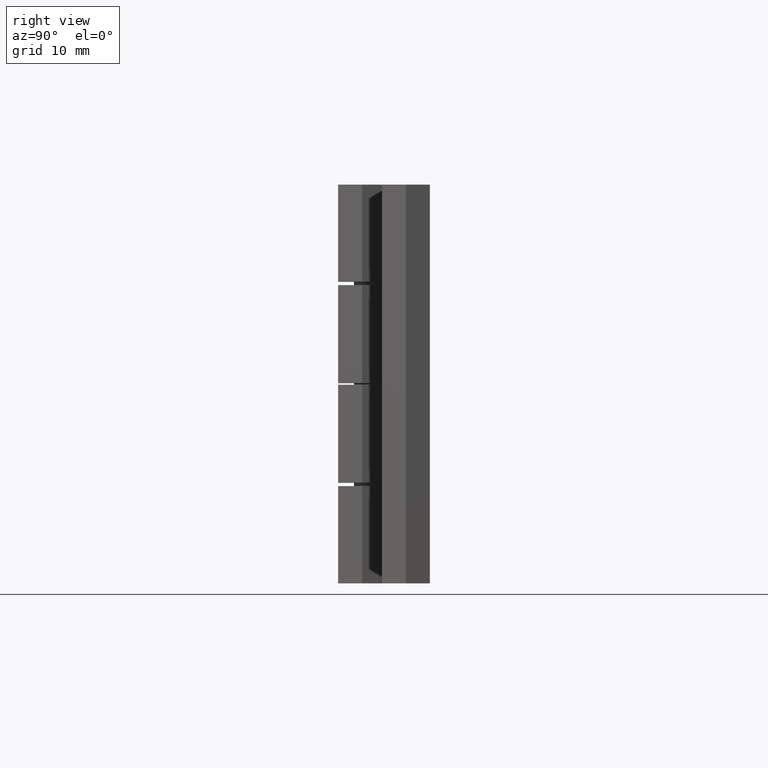
[diagram: clean part render]
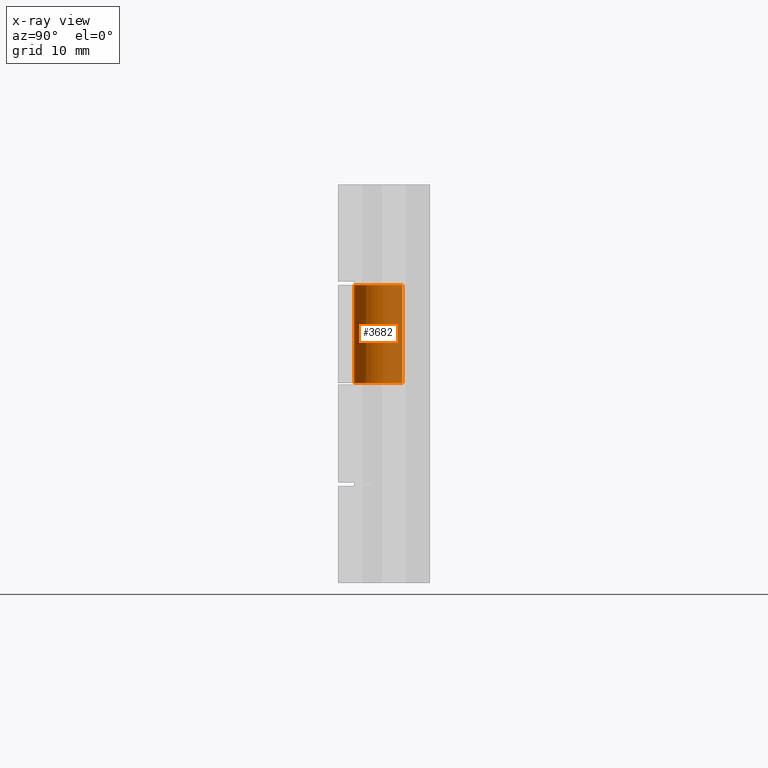
[diagram: x-ray — body ghosted, one internal face saturated and labeled with its STEP entity id]
A machine part, right view, then the same camera in x-ray: the body is ghosted and one INTERNAL B-rep face — a face not visible from any outside direction — is saturated and labeled: STEP entity #3682.
In plain terms, the highlighted face is a freeform B-spline surface patch.
Its self-contained STEP definition (entity closure, byte-faithful):
#3580=CARTESIAN_POINT('',(0.360005762731314,-3.028679199263739,37.707501791010188));
#3581=CARTESIAN_POINT('',(0.273326265256977,-3.038982371462178,37.707501791010181));
#3582=CARTESIAN_POINT('',(0.186199384354154,-3.044311279783734,37.707501791010181));
#3583=CARTESIAN_POINT('',(-2.858111895429574,-3.230509334208981,37.707501791010188));
#3584=CARTESIAN_POINT('',(-3.044309949854820,-0.186198054425254,37.707501791010181));
#3585=CARTESIAN_POINT('',(-3.230508004280067,2.858113225358472,37.707501791010188));
#3586=CARTESIAN_POINT('',(-0.186196724496341,3.044311279783720,37.707501791010181));
#3587=CARTESIAN_POINT('',(0.360005762731314,-3.028679199263739,24.784813677215297));
#3588=CARTESIAN_POINT('',(0.273326265256977,-3.038982371462178,24.784813677215290));
#3589=CARTESIAN_POINT('',(0.186199384354154,-3.044311279783734,24.784813677215290));
#3590=CARTESIAN_POINT('',(-2.858111895429574,-3.230509334208981,24.784813677215297));
#3591=CARTESIAN_POINT('',(-3.044309949854820,-0.186198054425254,24.784813677215290));
#3592=CARTESIAN_POINT('',(-3.230508004280067,2.858113225358472,24.784813677215297));
#3593=CARTESIAN_POINT('',(-0.186196724496341,3.044311279783720,24.784813677215290));
#3601=(BOUNDED_SURFACE()B_SPLINE_SURFACE(2,1,((#3580,#3587),(#3581,#3588),(#3582,#3589),(#3583,#3590),(#3584,#3591),(#3585,#3592),(#3586,#3593)),.UNSPECIFIED.,.F.,.F.,.U.)B_SPLINE_SURFACE_WITH_KNOTS((3,2,2,3),(2,2),(0.0,0.202136228039027,5.255541929014687,10.308947629990350),(0.0,12.922688113794891),.UNSPECIFIED.)GEOMETRIC_REPRESENTATION_ITEM()RATIONAL_B_SPLINE_SURFACE(((0.977505800795127,0.977505800795127),(0.988284271247462,0.988284271247462),(1.0,1.0),(0.707106781186548,0.707106781186548),(1.0,1.0),(0.707106781186548,0.707106781186548),(1.0,1.0)))REPRESENTATION_ITEM('')SURFACE());
#3602=CARTESIAN_POINT('',(0.360005762893354,-3.028679199244478,37.400001776404707));
#3603=VERTEX_POINT('',#3602);
#3604=CARTESIAN_POINT('',(-3.049998814938333,-7.105427E-015,37.400001776404700));
#3605=VERTEX_POINT('',#3604);
#3606=CARTESIAN_POINT('',(0.360005762893354,-3.028679199244478,37.400001776404707));
#3607=CARTESIAN_POINT('',(0.180634903610620,-3.050000144867247,37.400001776404707));
#3608=CARTESIAN_POINT('',(0.000001329928907,-3.050000144867247,37.400001776404700));
#3609=CARTESIAN_POINT('',(-3.049998814938332,-3.050000144867247,37.400001776404700));
#3610=CARTESIAN_POINT('',(-3.049998814938333,-7.105427E-015,37.400001776404700));
#3618=(BOUNDED_CURVE()B_SPLINE_CURVE(2,(#3606,#3607,#3608,#3609,#3610),.UNSPECIFIED.,.F.,.U.)B_SPLINE_CURVE_WITH_KNOTS((3,2,3),(0.229562473497560,0.250000000000000,0.500000000000000),.UNSPECIFIED.)CURVE()GEOMETRIC_REPRESENTATION_ITEM()RATIONAL_B_SPLINE_CURVE((0.956026754152441,0.976055948312461,1.0,0.707106781186548,1.0))REPRESENTATION_ITEM(''));
#3619=EDGE_CURVE('',#3603,#3605,#3618,.T.);
#3620=ORIENTED_EDGE('',*,*,#3619,.F.);
#3621=CARTESIAN_POINT('',(0.360005762893354,-3.028679199244478,25.100001192185900));
#3622=VERTEX_POINT('',#3621);
#3623=CARTESIAN_POINT('',(0.360005762893354,-3.028679199244478,37.400001776404707));
#3624=CARTESIAN_POINT('',(0.360005762893354,-3.028679199244478,25.100001192185900));
#3625=QUASI_UNIFORM_CURVE('',1,(#3623,#3624),.UNSPECIFIED.,.F.,.U.);
#3626=EDGE_CURVE('',#3603,#3622,#3625,.T.);
#3627=ORIENTED_EDGE('',*,*,#3626,.T.);
#3628=CARTESIAN_POINT('',(-3.049998814938333,-7.105427E-015,25.100001192185900));
#3629=VERTEX_POINT('',#3628);
#3630=CARTESIAN_POINT('',(0.360005762893354,-3.028679199244479,25.100001192185903));
#3631=CARTESIAN_POINT('',(0.180634903610620,-3.050000144867247,25.100001192185907));
#3632=CARTESIAN_POINT('',(0.000001329928907,-3.050000144867247,25.100001192185900));
#3633=CARTESIAN_POINT('',(-3.049998814938332,-3.050000144867247,25.100001192185903));
#3634=CARTESIAN_POINT('',(-3.049998814938333,-7.105427E-015,25.100001192185900));
#3642=(BOUNDED_CURVE()B_SPLINE_CURVE(2,(#3630,#3631,#3632,#3633,#3634),.UNSPECIFIED.,.F.,.U.)B_SPLINE_CURVE_WITH_KNOTS((3,2,3),(0.229562473497560,0.250000000000000,0.500000000000000),.UNSPECIFIED.)CURVE()GEOMETRIC_REPRESENTATION_ITEM()RATIONAL_B_SPLINE_CURVE((0.956026754152440,0.976055948312461,1.0,0.707106781186548,1.0))REPRESENTATION_ITEM(''));
#3643=EDGE_CURVE('',#3622,#3629,#3642,.T.);
#3644=ORIENTED_EDGE('',*,*,#3643,.T.);
#3645=CARTESIAN_POINT('',(-0.186196724671652,3.044311279772998,25.100001192185900));
#3646=VERTEX_POINT('',#3645);
#3647=CARTESIAN_POINT('',(-3.049998814938333,-7.105427E-015,25.100001192185900));
#3648=CARTESIAN_POINT('',(-3.049998814938333,2.869153640008800,25.100001192185903));
#3649=CARTESIAN_POINT('',(-0.186196724671652,3.044311279772998,25.100001192185903));
#3657=(BOUNDED_CURVE()B_SPLINE_CURVE(2,(#3647,#3648,#3649),.UNSPECIFIED.,.F.,.U.)B_SPLINE_CURVE_WITH_KNOTS((3,3),(0.500000000000000,0.739332962222096),.UNSPECIFIED.)CURVE()GEOMETRIC_REPRESENTATION_ITEM()RATIONAL_B_SPLINE_CURVE((1.0,0.719603993306447,0.976072041630612))REPRESENTATION_ITEM(''));
#3658=EDGE_CURVE('',#3629,#3646,#3657,.T.);
#3659=ORIENTED_EDGE('',*,*,#3658,.T.);
#3660=CARTESIAN_POINT('',(-0.186196724671652,3.044311279772998,37.400001776404700));
#3661=VERTEX_POINT('',#3660);
#3662=CARTESIAN_POINT('',(-0.186196724671652,3.044311279772998,37.400001776404700));
#3663=CARTESIAN_POINT('',(-0.186196724671652,3.044311279772998,25.100001192185900));
#3664=QUASI_UNIFORM_CURVE('',1,(#3662,#3663),.UNSPECIFIED.,.F.,.U.);
#3665=EDGE_CURVE('',#3661,#3646,#3664,.T.);
#3666=ORIENTED_EDGE('',*,*,#3665,.F.);
#3667=CARTESIAN_POINT('',(-3.049998814938333,-7.105427E-015,37.400001776404700));
#3668=CARTESIAN_POINT('',(-3.049998814938333,2.869153640008800,37.400001776404700));
#3669=CARTESIAN_POINT('',(-0.186196724671652,3.044311279772998,37.400001776404707));
#3677=(BOUNDED_CURVE()B_SPLINE_CURVE(2,(#3667,#3668,#3669),.UNSPECIFIED.,.F.,.U.)B_SPLINE_CURVE_WITH_KNOTS((3,3),(0.500000000000000,0.739332962222096),.UNSPECIFIED.)CURVE()GEOMETRIC_REPRESENTATION_ITEM()RATIONAL_B_SPLINE_CURVE((1.0,0.719603993306447,0.976072041630612))REPRESENTATION_ITEM(''));
#3678=EDGE_CURVE('',#3605,#3661,#3677,.T.);
#3679=ORIENTED_EDGE('',*,*,#3678,.F.);
#3680=EDGE_LOOP('',(#3620,#3627,#3644,#3659,#3666,#3679));
#3681=FACE_OUTER_BOUND('',#3680,.T.);
#3682=ADVANCED_FACE('',(#3681),#3601,.F.);